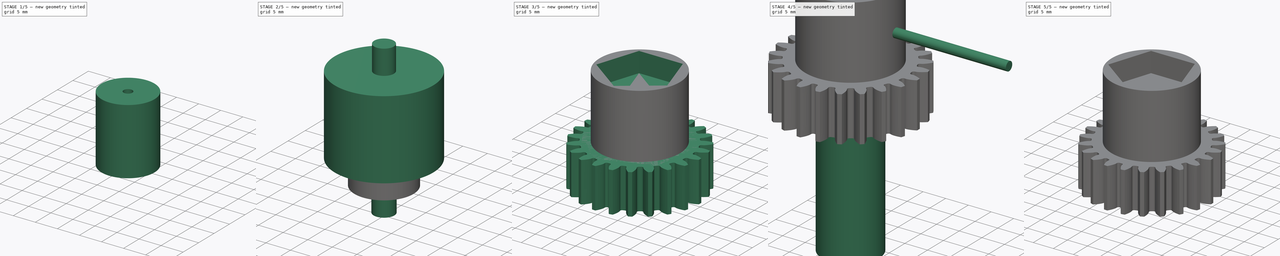
[diagram: build sequence overview — one tinted view per stage of 5, left to right]
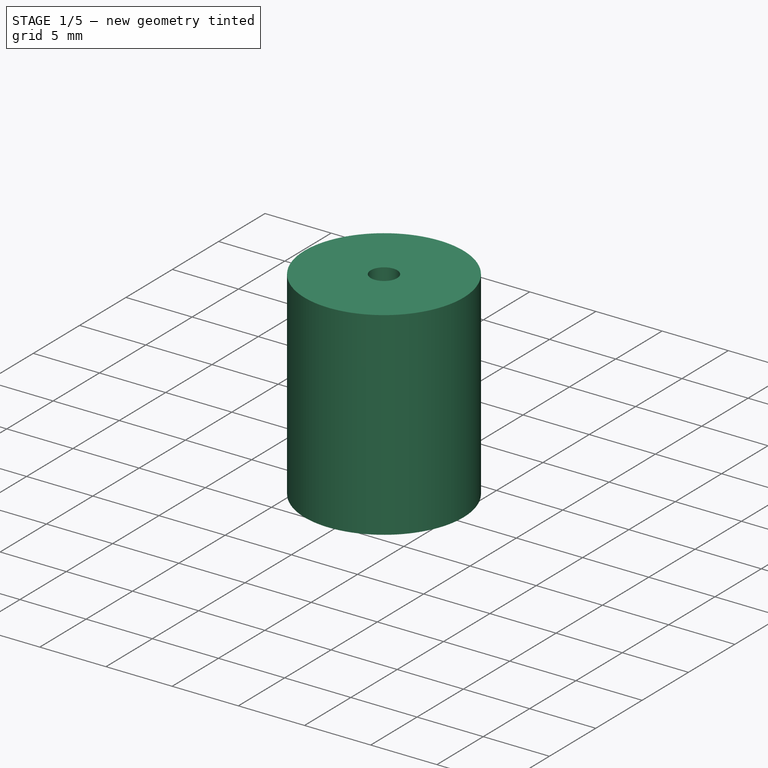
[diagram: stage 1 of 5 — iso view after this stage's code; geometry added in this stage tinted green]
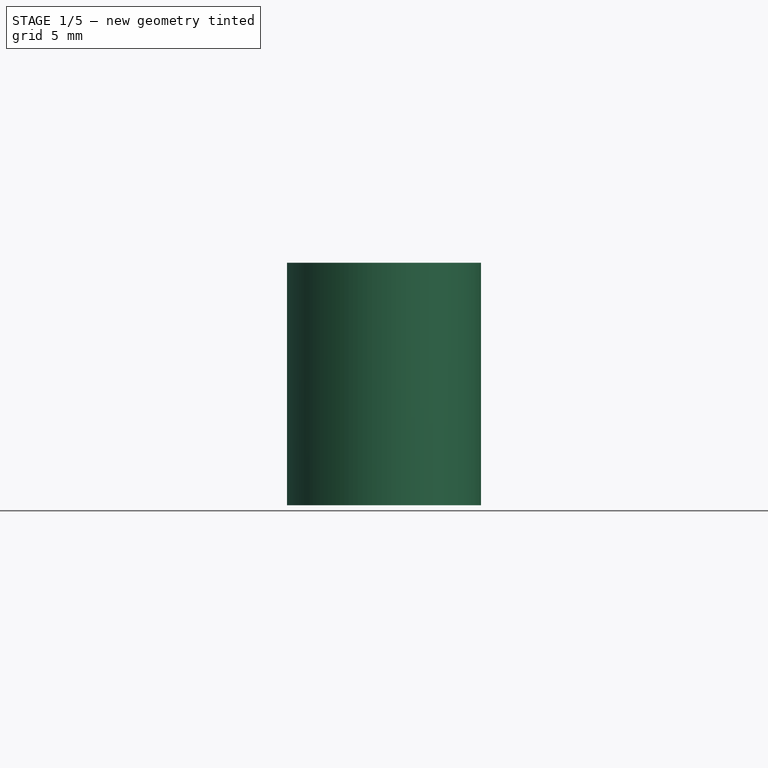
[diagram: stage 1 of 5 — front view after this stage's code; geometry added in this stage tinted green]
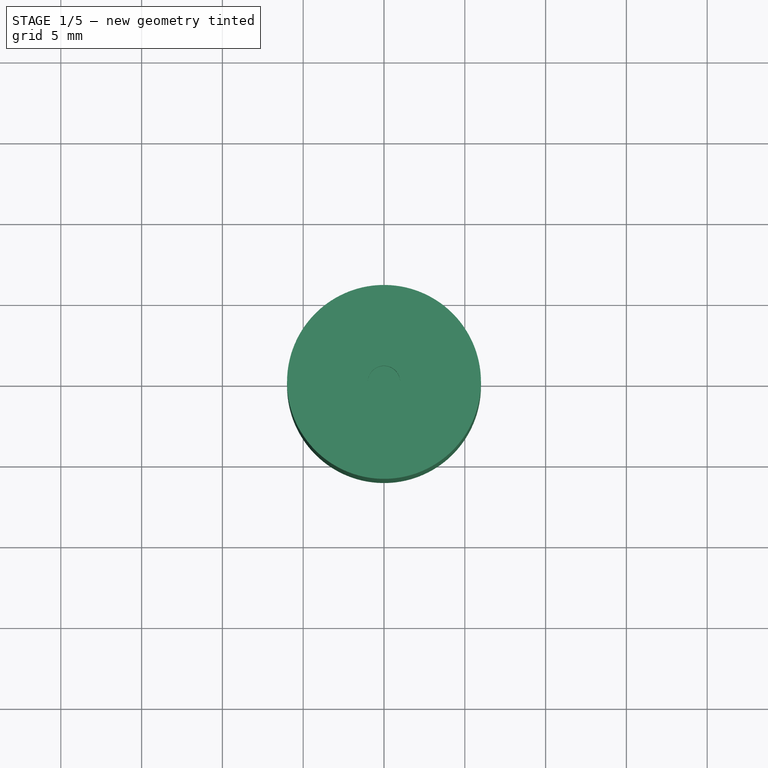
[diagram: stage 1 of 5 — top view after this stage's code; geometry added in this stage tinted green]
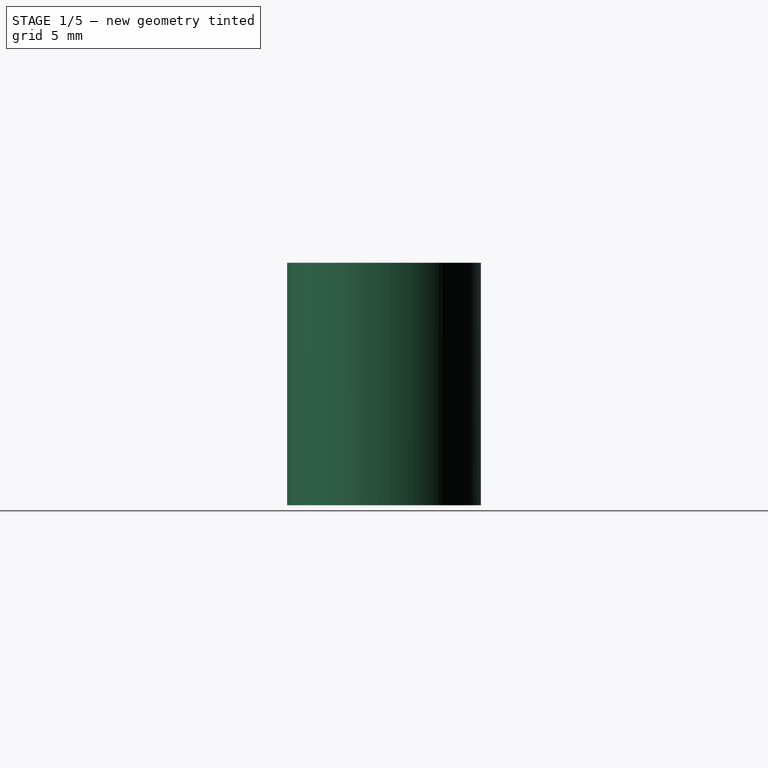
[diagram: stage 1 of 5 — right view after this stage's code; geometry added in this stage tinted green]
FCSTD DOCUMENT  (FreeCAD 0.19R)
Label: engranajes
License: Creative Commons Attribution-ShareAlike
LicenseURL: http://creativecommons.org/licenses/by-sa/4.0/
objects: Part::Cut×7, Part::Cylinder×6, Part::Feature×5, PartDesign::Pad×4, Part::Part2DObjectPython×3, Sketcher::SketchObject×3, PartDesign::Body×3, PartDesign::Pocket×2, Part::MultiFuse×2, App::DocumentObjectGroup×1
note: 41 computed .brp shape members not serialized (recipe doc carries the construction recipe); baked Part::Feature solids carry a one-line shape summary decoded from their .brp

FEATURE [PartDesign::Body] Body002002  label="Engrnaje_intermedio"
  Group = -> [InvoluteGear003,Pad004,Sketch003,Pocket002]
  Origin = -> Origin003
  Tip = -> Pocket002
FEATURE [Part::Cylinder] Cylinder004  label="Eje003"
  Angle = 360
  AttacherType = Attacher::AttachEngine3D
  Height = 15
  Placement = pos=(0,0,5) rot=(0,0,1;0rad)
  Radius = 6
FEATURE [Part::Cut] Cut011
  Base = -> Cylinder004
  Refine = true
  Tool = -> Body002002001
FEATURE [Part::Cut] Cut012
  Base = -> Cut011
  Refine = true
  Tool = -> Fusion001001
FEATURE [Part::Cylinder] Cylinder007  label="Cilindro002"
  Angle = 360
  AttacherType = Attacher::AttachEngine3D
  Height = 14
  Placement = pos=(0,0,5) rot=(0,0,1;0rad)
  Radius = 5
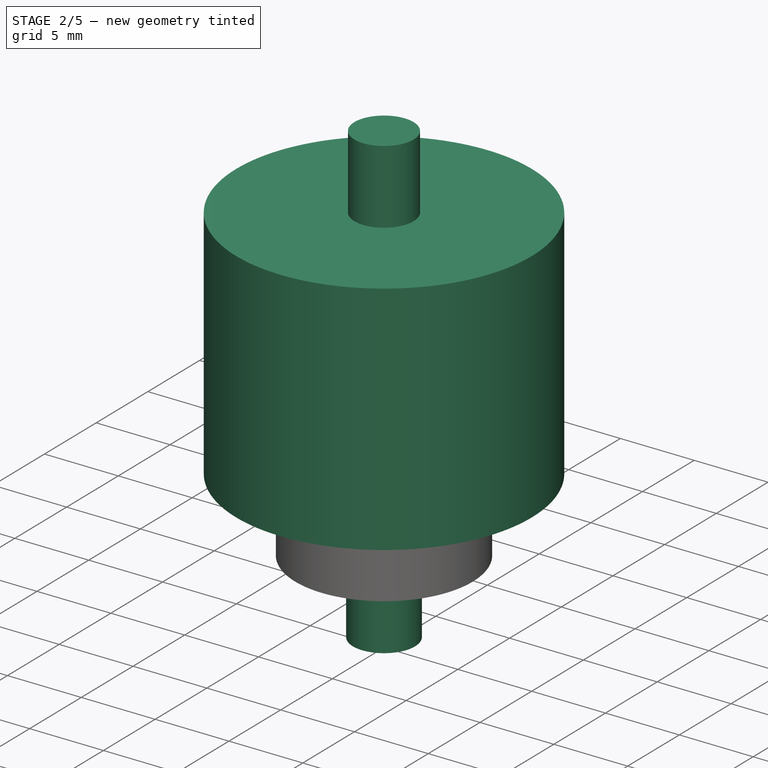
[diagram: stage 2 of 5 — iso view after this stage's code; geometry added in this stage tinted green]
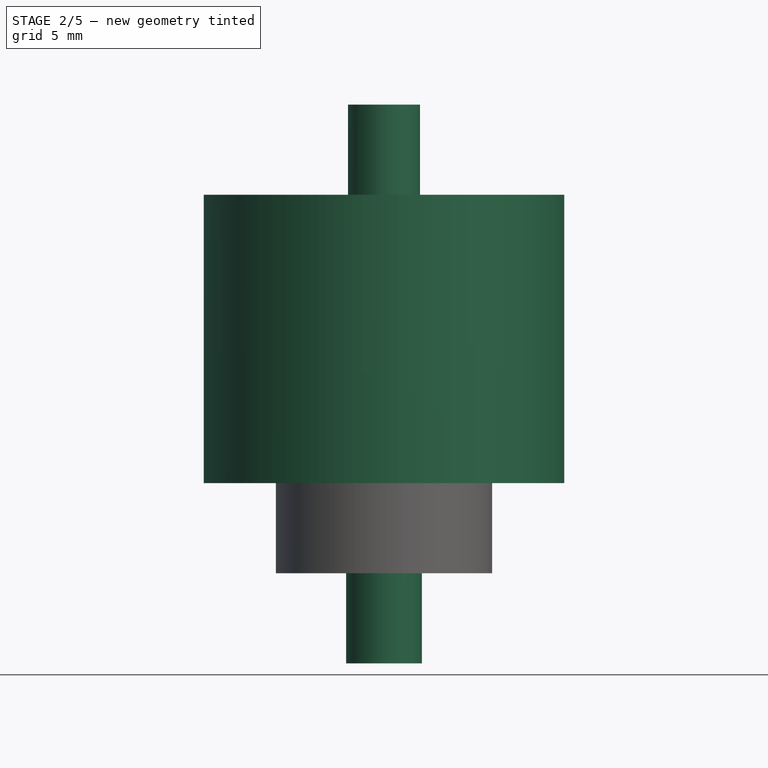
[diagram: stage 2 of 5 — front view after this stage's code; geometry added in this stage tinted green]
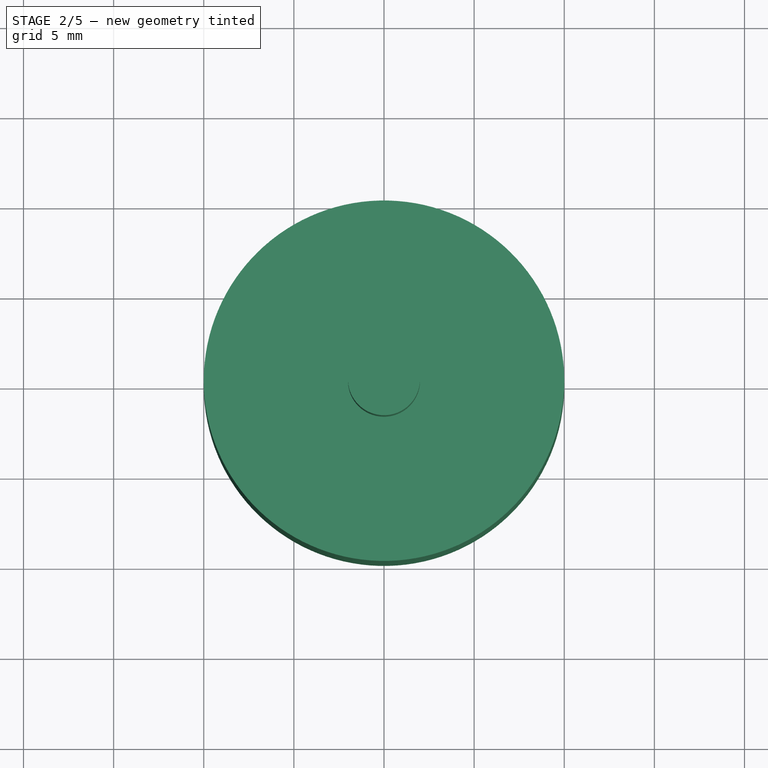
[diagram: stage 2 of 5 — top view after this stage's code; geometry added in this stage tinted green]
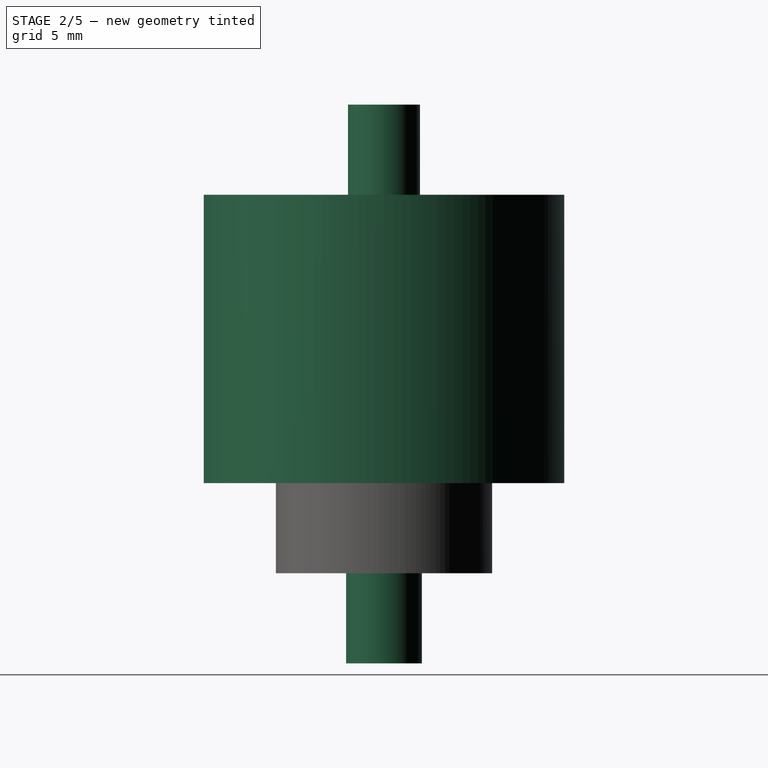
[diagram: stage 2 of 5 — right view after this stage's code; geometry added in this stage tinted green]
FEATURE [Part::Cylinder] Cylinder003  label="Eje002"
  Angle = 360
  AttacherType = Attacher::AttachEngine3D
  Height = 16
  Placement = pos=(0,0,10) rot=(0,0,1;0rad)
  Radius = 10
FEATURE [Part::Cylinder] Cylinder005  label="Cilindro"
  Angle = 360
  AttacherType = Attacher::AttachEngine3D
  Height = 10
  Radius = 2.1
FEATURE [Part::Cylinder] Cylinder006  label="Cilindro001"
  Angle = 360
  AttacherType = Attacher::AttachEngine3D
  Height = 10
  Placement = pos=(0,0,21) rot=(0,0,1;0rad)
  Radius = 2
FEATURE [Part::Cut] Cut013  label="Eje004"
  Base = -> Cut012
  Refine = true
  Tool = -> Cylinder007
FEATURE [App::DocumentObjectGroup] Grupo001  label="Engranajes_intermedios"
  Group = -> [Body002002,Cut013]
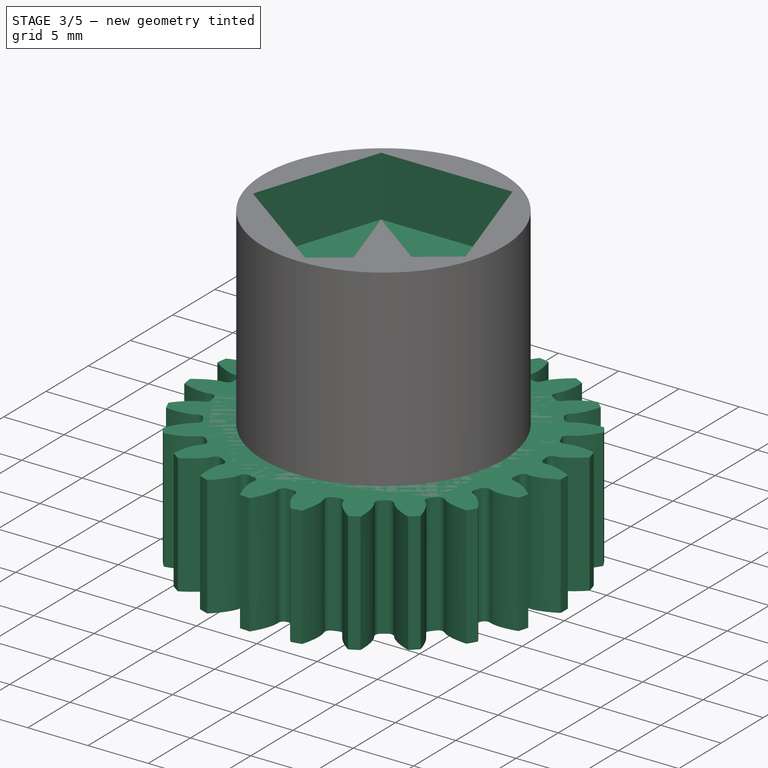
[diagram: stage 3 of 5 — iso view after this stage's code; geometry added in this stage tinted green]
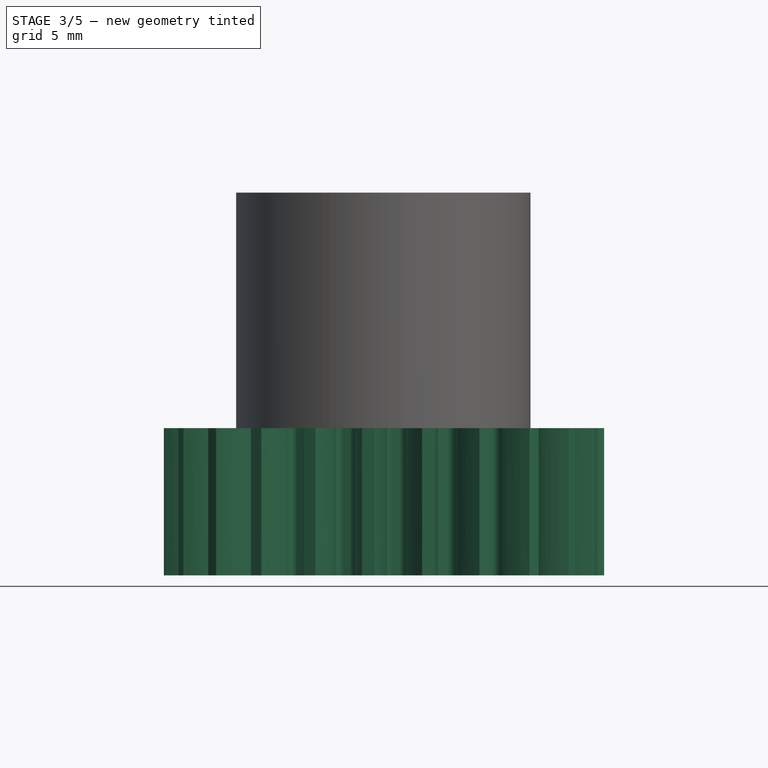
[diagram: stage 3 of 5 — front view after this stage's code; geometry added in this stage tinted green]
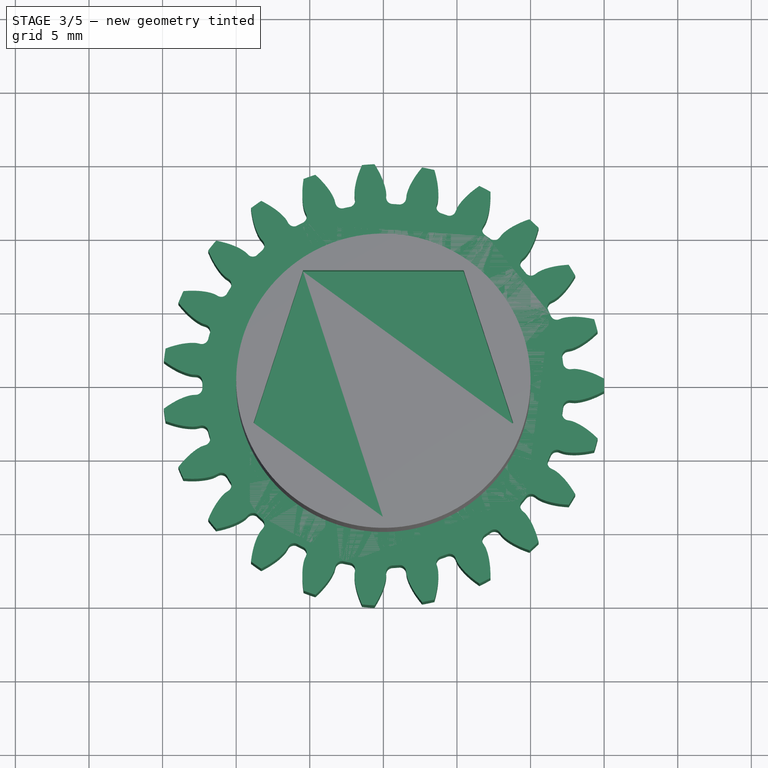
[diagram: stage 3 of 5 — top view after this stage's code; geometry added in this stage tinted green]
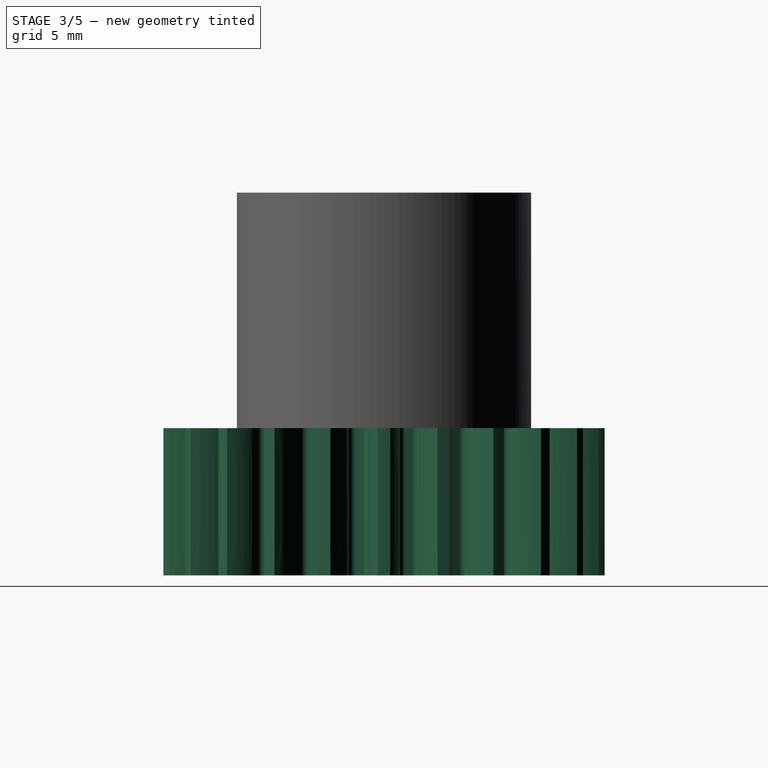
[diagram: stage 3 of 5 — right view after this stage's code; geometry added in this stage tinted green]
FEATURE [Part::Feature] Body002001  label="Engranaje001"
  shape: bbox 29.91 x 29.98 x 10 mm, 236 faces (baked)
FEATURE [Part::Part2DObjectPython] InvoluteGear003  # Draft 2D object (typed FeaturePython)
  ExternalGear = true
  HighPrecision = true
  Modules = 1.2
  NumberOfTeeth = 23
  PressureAngle = 20
FEATURE [PartDesign::Pad] Pad004
  Direction = (1,1,1)
  Length = 10
  Length2 = 100
  Profile = -> InvoluteGear003
  Refine = true
  Type = 0
FEATURE [Part::Feature] Body002002001  label="Engranaje_original002"
  shape: bbox 29.91 x 29.98 x 10 mm, 236 faces (baked)
FEATURE [Part::Feature] Fusion001001  label="Rosca macho002"
  Placement = pos=(0,0,3) rot=(0,0,1;0rad)
  shape: bbox 3.919 x 4.387 x 44 mm, 35 faces (baked)
FEATURE [Part::Feature] Cut007
  Placement = pos=(0,0,31) rot=(1,0,0;3.14159rad)
  shape: bbox 20 x 20.95 x 10 mm, 29 faces (baked)
FEATURE [Part::Cut] Cut008
  Base = -> Cylinder003
  Refine = true
  Tool = -> Cut007
FEATURE [Part::MultiFuse] Fusion001004
  Refine = true
  Shapes = -> [Cut008,Body002001]
FEATURE [Part::Cut] Cut009
  Base = -> Fusion001004
  Refine = true
  Tool = -> Cylinder005
FEATURE [Part::Cut] Cut010  label="Engranaje_motor"
  Base = -> Cut009
  Refine = true
  Tool = -> Cylinder006
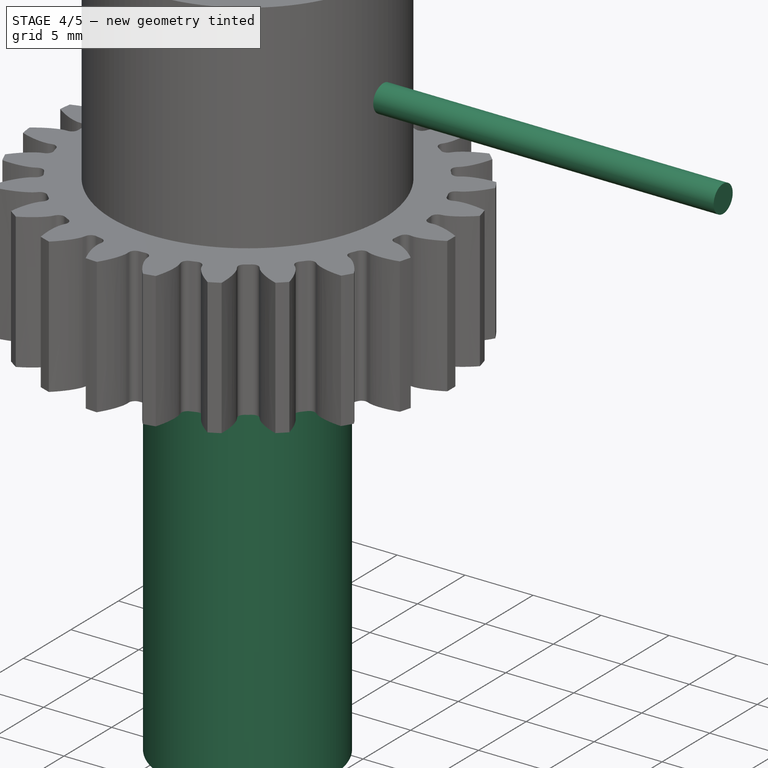
[diagram: stage 4 of 5 — iso view after this stage's code; geometry added in this stage tinted green]
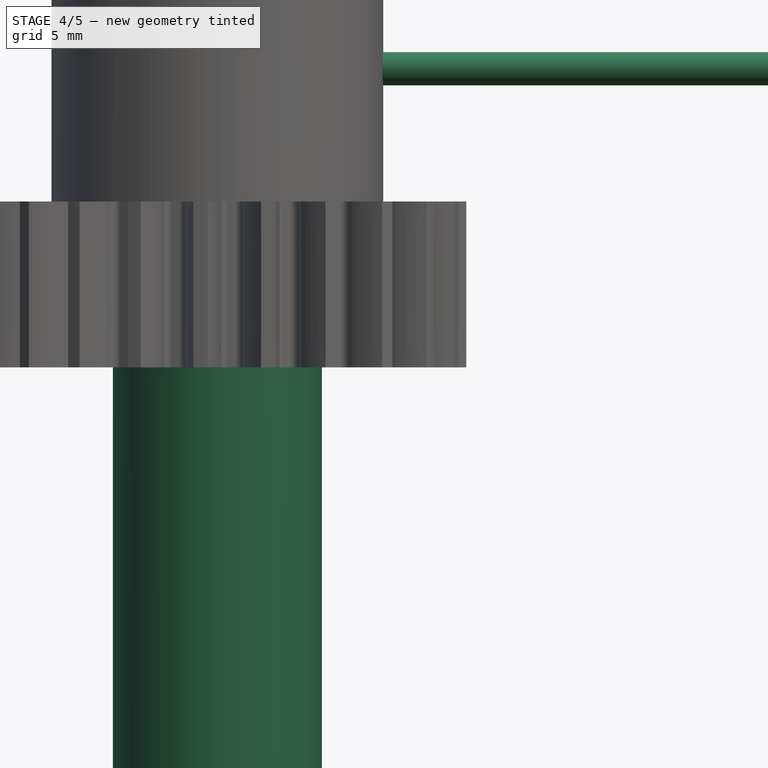
[diagram: stage 4 of 5 — front view after this stage's code; geometry added in this stage tinted green]
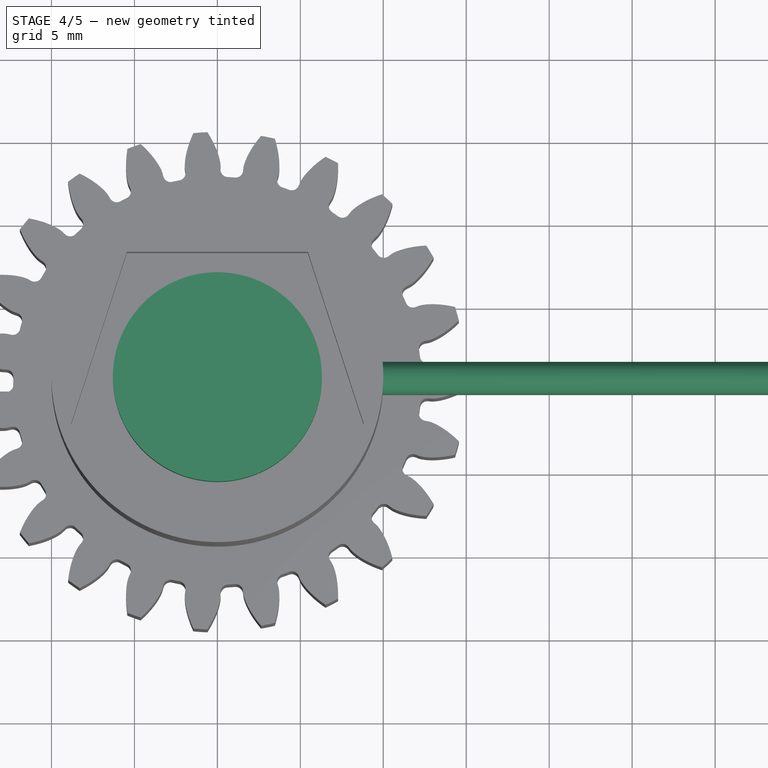
[diagram: stage 4 of 5 — top view after this stage's code; geometry added in this stage tinted green]
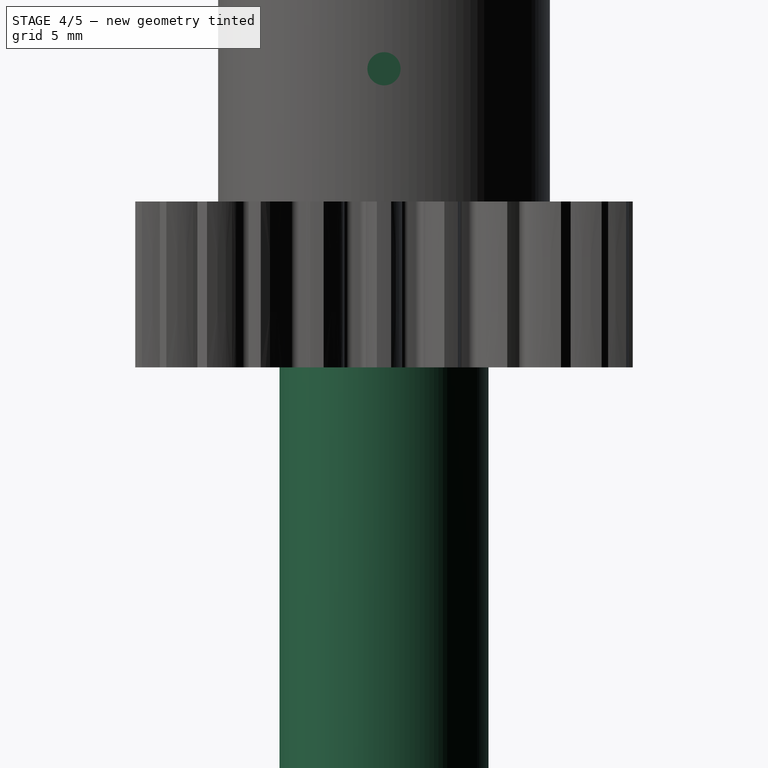
[diagram: stage 4 of 5 — right view after this stage's code; geometry added in this stage tinted green]
FEATURE [PartDesign::Body] Body  label="Engranaje_original"
  Group = -> [InvoluteGear,Pad,Sketch,Pocket]
  Origin = -> Origin
  Tip = -> Pocket
FEATURE [Part::Cylinder] Cylinder  label="Eje"
  Angle = 360
  AttacherType = Attacher::AttachEngine3D
  Height = 52
  Placement = pos=(0,0,-28) rot=(0,0,1;0rad)
  Radius = 6.3
FEATURE [Part::Feature] Fusion001002  label="Rosca macho003"
  Placement = pos=(-8,0,18) rot=(0,1,0;1.5708rad)
  shape: bbox 44 x 4.387 x 3.919 mm, 35 faces (baked)
FEATURE [Part::Part2DObjectPython] InvoluteGear001  # Draft 2D object (typed FeaturePython)
  ExternalGear = true
  HighPrecision = true
  Modules = 1.2
  NumberOfTeeth = 23
  PressureAngle = 20
FEATURE [PartDesign::Pad] Pad001
  Direction = (1,1,1)
  Length = 10
  Length2 = 100
  Profile = -> InvoluteGear001
  Refine = true
  Type = 0
FEATURE [PartDesign::Body] Body001  label="Engranajes001"
  Group = -> [InvoluteGear001,Pad001,Sketch001,Pad002]
  Origin = -> Origin001
  Tip = -> Pad002
FEATURE [Part::MultiFuse] Fusion
  Refine = true
  Shapes = -> [Fusion001002,Cylinder]
FEATURE [Sketcher::SketchObject] Sketch003
  FullyConstrained = false
  MapMode = 5
  Placement = pos=(0,0,10) rot=(0,0,1;0rad)
  Support = -> [Pad004]
  sketch-geometry (2):
    g0: Circle CenterX=0 CenterY=0 CenterZ=0 NormalX=0 NormalY=0 NormalZ=1 AngleXU=0 Radius=9.61916
    g1: Circle CenterX=0 CenterY=0 CenterZ=0 NormalX=0 NormalY=0 NormalZ=1 AngleXU=0 Radius=5
  constraints (3):
    c: Coincident(g0,g-1)
    c: Coincident(g1,g0)
    c: Radius(g1) = 5
FEATURE [PartDesign::Pocket] Pocket002
  BaseFeature = -> Pad004
  Length = 5
  Length2 = 100
  Profile = -> Sketch003
  Refine = true
  Type = 0
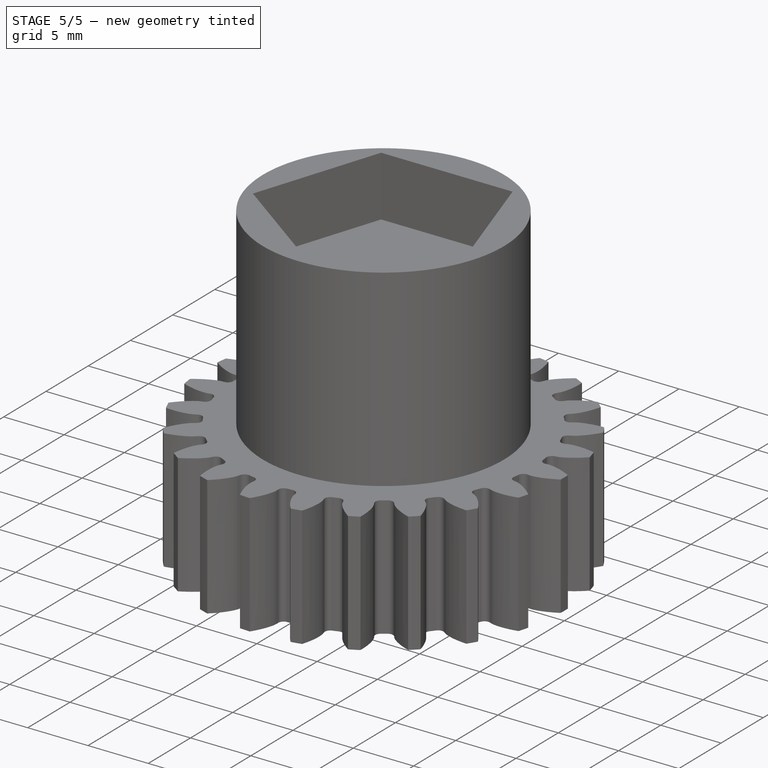
[diagram: stage 5 of 5 — iso view after this stage's code; geometry added in this stage tinted green]
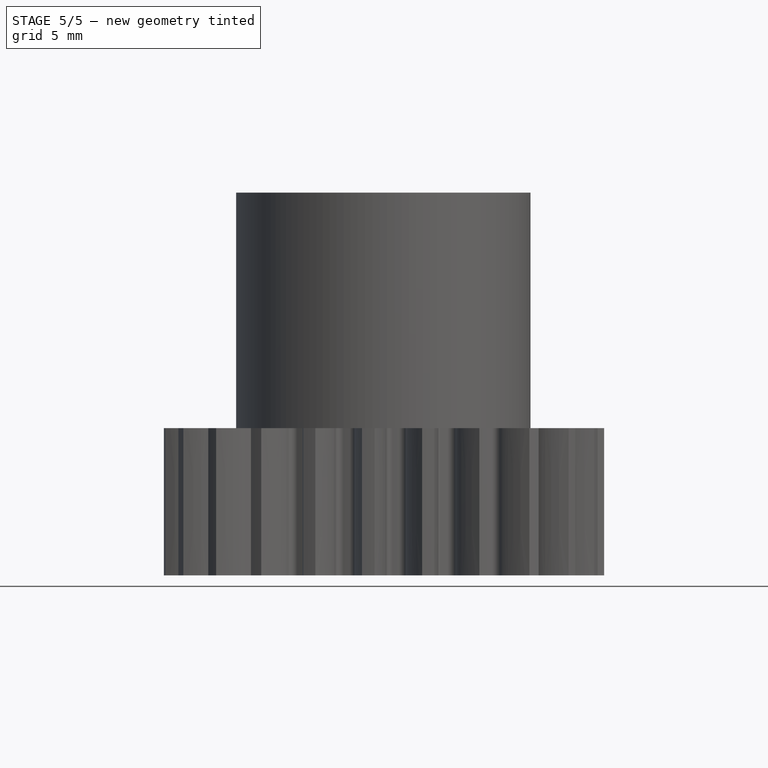
[diagram: stage 5 of 5 — front view after this stage's code; geometry added in this stage tinted green]
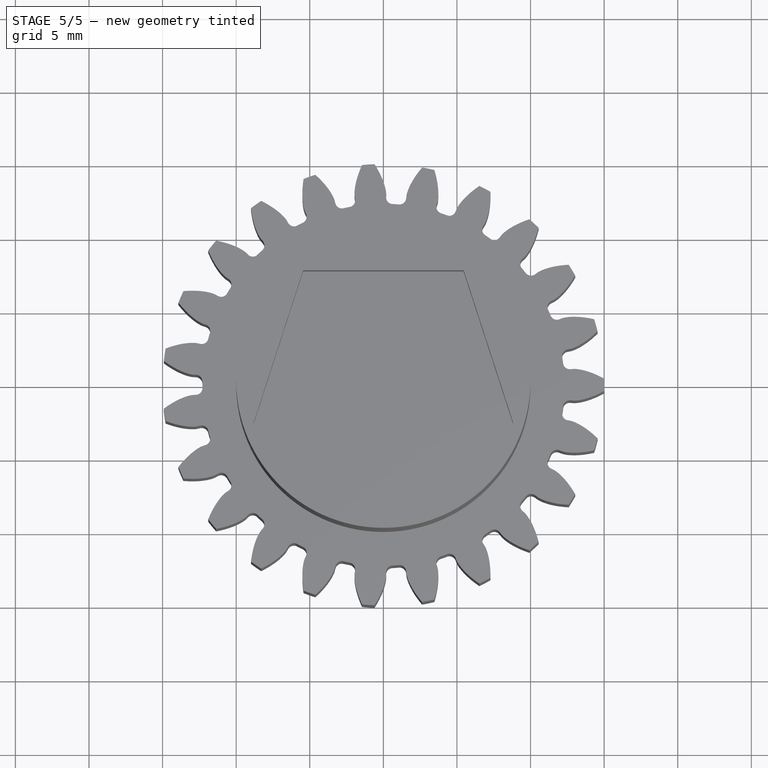
[diagram: stage 5 of 5 — top view after this stage's code; geometry added in this stage tinted green]
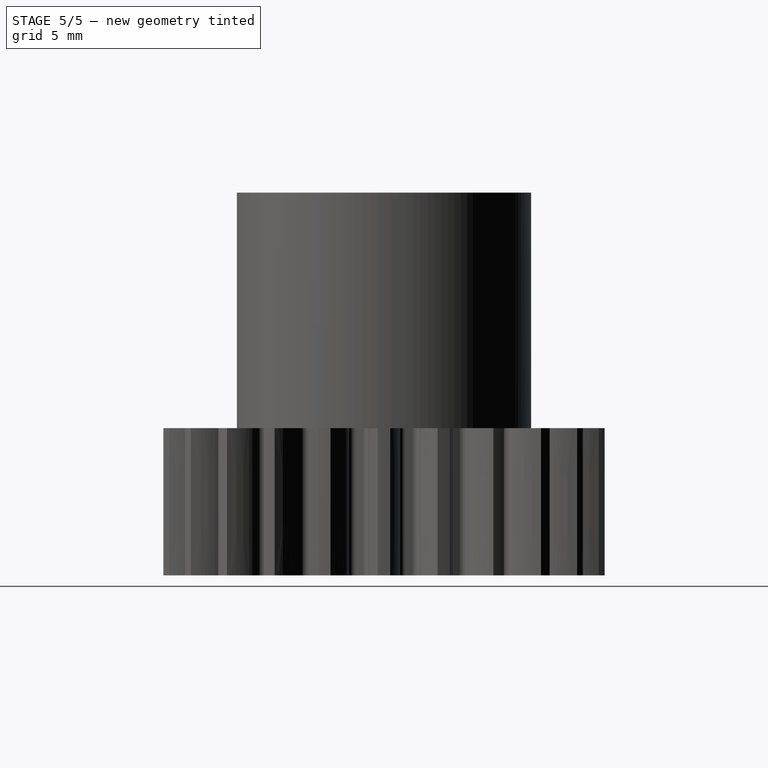
[diagram: stage 5 of 5 — right view after this stage's code; geometry added in this stage tinted green]
FEATURE [Part::Part2DObjectPython] InvoluteGear  # Draft 2D object (typed FeaturePython)
  ExternalGear = true
  HighPrecision = true
  Modules = 1.2
  NumberOfTeeth = 23
  PressureAngle = 20
FEATURE [PartDesign::Pad] Pad
  Direction = (1,1,1)
  Length = 10
  Length2 = 100
  Profile = -> InvoluteGear
  Refine = true
  Type = 0
FEATURE [Sketcher::SketchObject] Sketch
  FullyConstrained = false
  MapMode = 5
  Placement = pos=(0,0,10) rot=(0,0,1;0rad)
  Support = -> [Pad]
  sketch-geometry (2):
    g0: Circle CenterX=0 CenterY=0 CenterZ=0 NormalX=0 NormalY=0 NormalZ=1 AngleXU=0 Radius=9.61916
    g1: Circle CenterX=0 CenterY=0 CenterZ=0 NormalX=0 NormalY=0 NormalZ=1 AngleXU=0 Radius=4
  constraints (3):
    c: Coincident(g0,g-1)
    c: Coincident(g1,g0)
    c: Radius(g1) = 4
FEATURE [PartDesign::Pocket] Pocket
  BaseFeature = -> Pad
  Length = 5
  Length2 = 100
  Profile = -> Sketch
  Refine = true
  Type = 0
FEATURE [Sketcher::SketchObject] Sketch001
  FullyConstrained = false
  MapMode = 5
  Placement = pos=(0,0,10) rot=(0,0,1;0rad)
  Support = -> [Pad001]
  sketch-geometry (1):
    g0: Circle CenterX=0 CenterY=0 CenterZ=0 NormalX=0 NormalY=0 NormalZ=1 AngleXU=0 Radius=8.36331
  constraints (1):
    c: Coincident(g0,g-1)
FEATURE [PartDesign::Pad] Pad002
  BaseFeature = -> Pad001
  Direction = (1,1,1)
  Length = 10
  Length2 = 100
  Profile = -> Sketch001
  Refine = true
  Type = 0
FEATURE [Part::Cut] Cut  label="Engranaje_helice"
  Base = -> Body001
  Refine = true
  Tool = -> Fusion
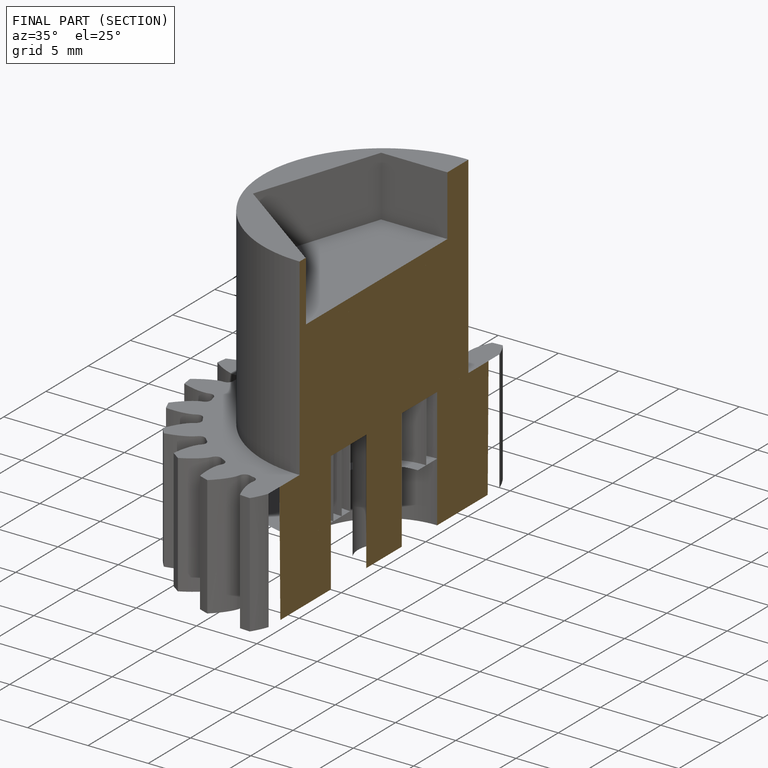
[diagram: finished part — half-section view (interior)]
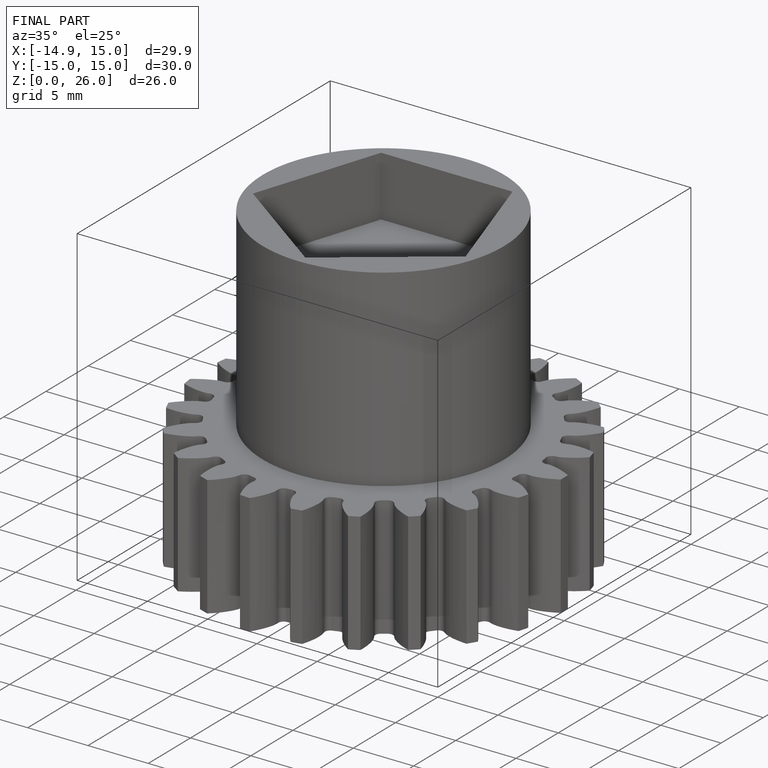
[diagram: finished part — iso view with bounding-box wireframe]
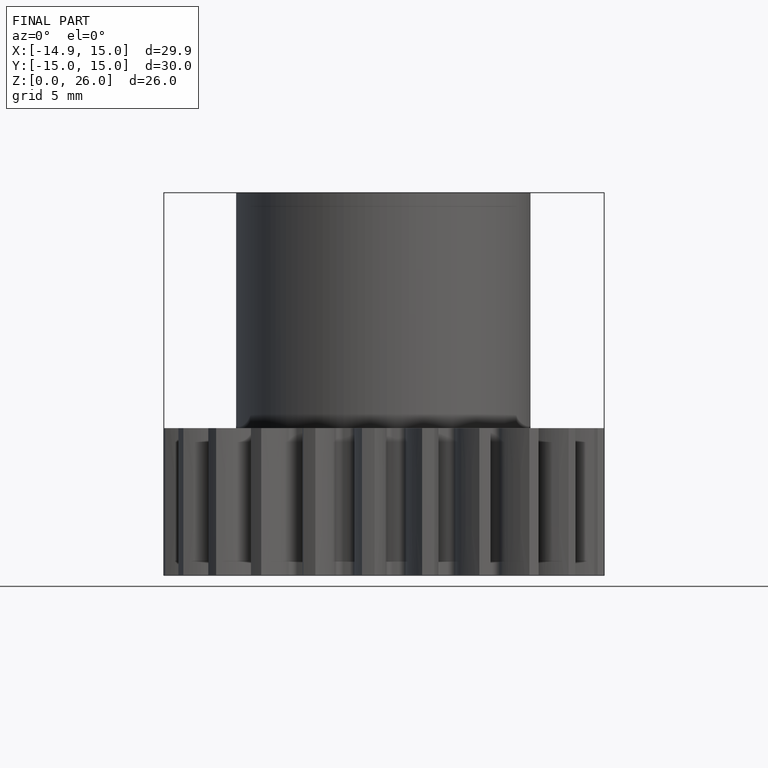
[diagram: finished part — front view with bounding-box wireframe]
